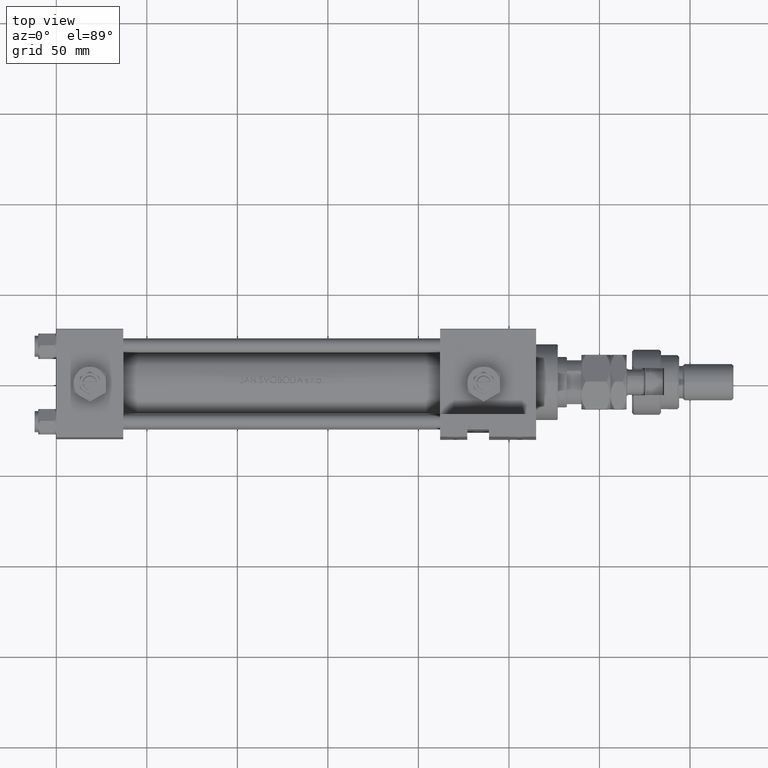
[diagram: clean part render]
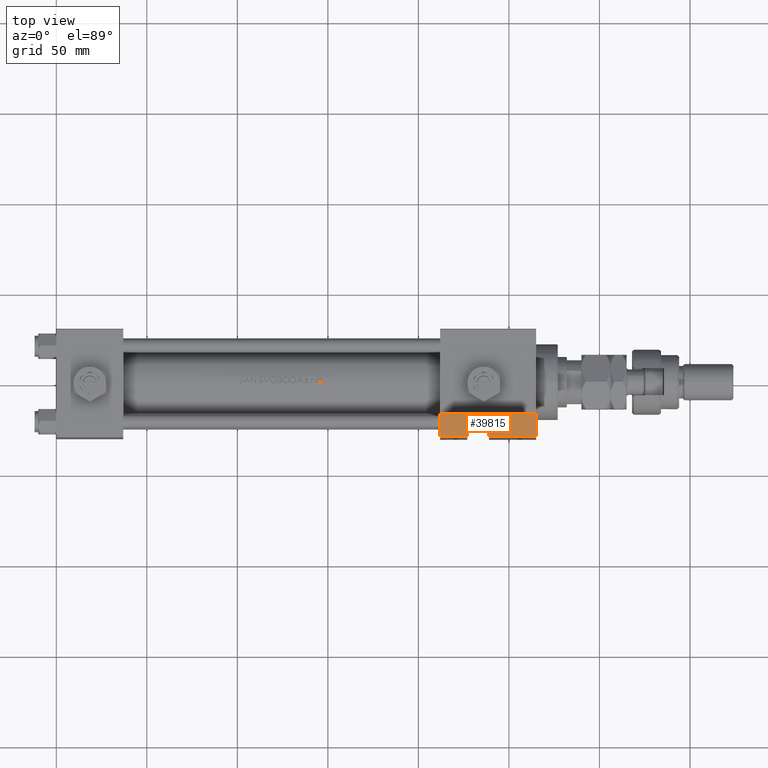
[diagram: same view with one face highlighted and labeled with its STEP entity id]
A machine part, top view. The second image highlights one B-rep face of the part: STEP entity #39815.
In plain terms, the highlighted planar face has unit normal (0, 0, 1).
Its self-contained STEP definition (entity closure, byte-faithful):
#839 = VERTEX_POINT ( 'NONE', #31587 ) ;
#1292 = FACE_OUTER_BOUND ( 'NONE', #13569, .T. ) ;
#2069 = CARTESIAN_POINT ( 'NONE',  ( 212.0000000000000000, -51.50000000000002132, -17.49999999999999645 ) ) ;
#4149 = LINE ( 'NONE', #12040, #42690 ) ;
#4414 = CARTESIAN_POINT ( 'NONE',  ( 265.0000000000000000, -51.50000000000001421, -29.99999999999999645 ) ) ;
#5605 = VECTOR ( 'NONE', #47328, 1000.000000000000000 ) ;
#5961 = DIRECTION ( 'NONE',  ( -1.000000000000000000, -1.309225264888155637E-16, -0.000000000000000000 ) ) ;
#7027 = EDGE_CURVE ( 'NONE', #52006, #31231, #25434, .T. ) ;
#7925 = EDGE_CURVE ( 'NONE', #839, #52006, #4149, .T. ) ;
#9406 = CARTESIAN_POINT ( 'NONE',  ( 212.0000000000000000, -51.50000000000002132, -29.99999999999999645 ) ) ;
#10712 = ORIENTED_EDGE ( 'NONE', *, *, #20881, .F. ) ;
#10920 = EDGE_CURVE ( 'NONE', #41830, #23632, #20719, .T. ) ;
#12040 = CARTESIAN_POINT ( 'NONE',  ( 227.0000000000000284, -51.50000000000000000, -25.99999999999999645 ) ) ;
#12905 = ORIENTED_EDGE ( 'NONE', *, *, #10920, .T. ) ;
#13569 = EDGE_LOOP ( 'NONE', ( #20718, #29948, #43441, #46271, #12905, #10712, #30673, #31751 ) ) ;
#13965 = VERTEX_POINT ( 'NONE', #37911 ) ;
#14051 = PLANE ( 'NONE',  #17198 ) ;
#14100 = LINE ( 'NONE', #17890, #37886 ) ;
#16356 = EDGE_CURVE ( 'NONE', #23657, #41830, #42982, .T. ) ;
#17198 = AXIS2_PLACEMENT_3D ( 'NONE', #18113, #31106, #51441 ) ;
#17890 = CARTESIAN_POINT ( 'NONE',  ( 212.0000000000000000, -51.50000000000002132, -29.99999999999999645 ) ) ;
#17990 = DIRECTION ( 'NONE',  ( 0.000000000000000000, 0.000000000000000000, -1.000000000000000000 ) ) ;
#18099 = VECTOR ( 'NONE', #21825, 1000.000000000000000 ) ;
#18113 = CARTESIAN_POINT ( 'NONE',  ( 212.0000000000000000, -51.50000000000002132, -17.49999999999999645 ) ) ;
#20718 = ORIENTED_EDGE ( 'NONE', *, *, #37917, .T. ) ;
#20719 = LINE ( 'NONE', #53261, #21088 ) ;
#20881 = EDGE_CURVE ( 'NONE', #31231, #23632, #45987, .T. ) ;
#21088 = VECTOR ( 'NONE', #49713, 1000.000000000000000 ) ;
#21825 = DIRECTION ( 'NONE',  ( -0.000000000000000000, -0.000000000000000000, -1.000000000000000000 ) ) ;
#22287 = VERTEX_POINT ( 'NONE', #4414 ) ;
#22733 = CARTESIAN_POINT ( 'NONE',  ( 212.0000000000000000, -51.50000000000002132, -17.49999999999999645 ) ) ;
#23632 = VERTEX_POINT ( 'NONE', #39283 ) ;
#23657 = VERTEX_POINT ( 'NONE', #39548 ) ;
#24913 = CARTESIAN_POINT ( 'NONE',  ( 227.0000000000000284, -51.50000000000000000, -25.99999999999999645 ) ) ;
#25434 = LINE ( 'NONE', #24913, #43634 ) ;
#29190 = DIRECTION ( 'NONE',  ( -1.000000000000000000, -1.309225264888155637E-16, -0.000000000000000000 ) ) ;
#29948 = ORIENTED_EDGE ( 'NONE', *, *, #31863, .F. ) ;
#30673 = ORIENTED_EDGE ( 'NONE', *, *, #7027, .F. ) ;
#31106 = DIRECTION ( 'NONE',  ( 1.309225264888156130E-16, -1.000000000000000000, 0.000000000000000000 ) ) ;
#31231 = VERTEX_POINT ( 'NONE', #48906 ) ;
#31587 = CARTESIAN_POINT ( 'NONE',  ( 239.0000000000000284, -51.50000000000001421, -25.99999999999999645 ) ) ;
#31751 = ORIENTED_EDGE ( 'NONE', *, *, #7925, .F. ) ;
#31863 = EDGE_CURVE ( 'NONE', #22287, #13965, #14100, .T. ) ;
#32593 = DIRECTION ( 'NONE',  ( -1.000000000000000000, -0.000000000000000000, -0.000000000000000000 ) ) ;
#37886 = VECTOR ( 'NONE', #5961, 1000.000000000000000 ) ;
#37911 = CARTESIAN_POINT ( 'NONE',  ( 239.0000000000000284, -51.50000000000000000, -29.99999999999999645 ) ) ;
#37917 = EDGE_CURVE ( 'NONE', #839, #13965, #38622, .T. ) ;
#38089 = CARTESIAN_POINT ( 'NONE',  ( 239.0000000000000284, -51.50000000000000000, -25.99999999999999645 ) ) ;
#38275 = VECTOR ( 'NONE', #29190, 1000.000000000000000 ) ;
#38619 = VECTOR ( 'NONE', #17990, 1000.000000000000000 ) ;
#38622 = LINE ( 'NONE', #38089, #18099 ) ;
#39283 = CARTESIAN_POINT ( 'NONE',  ( 212.0000000000000000, -51.50000000000002132, -29.99999999999999645 ) ) ;
#39543 = CARTESIAN_POINT ( 'NONE',  ( 227.0000000000000284, -51.50000000000000000, -25.99999999999999645 ) ) ;
#39548 = CARTESIAN_POINT ( 'NONE',  ( 265.0000000000000000, -51.50000000000001421, -17.49999999999999645 ) ) ;
#39815 = ADVANCED_FACE ( 'NONE', ( #1292 ), #14051, .T. ) ;
#41830 = VERTEX_POINT ( 'NONE', #22733 ) ;
#42690 = VECTOR ( 'NONE', #32593, 1000.000000000000000 ) ;
#42982 = LINE ( 'NONE', #2069, #5605 ) ;
#43441 = ORIENTED_EDGE ( 'NONE', *, *, #45015, .F. ) ;
#43634 = VECTOR ( 'NONE', #49821, 1000.000000000000000 ) ;
#45015 = EDGE_CURVE ( 'NONE', #23657, #22287, #51585, .T. ) ;
#45987 = LINE ( 'NONE', #9406, #38275 ) ;
#46271 = ORIENTED_EDGE ( 'NONE', *, *, #16356, .T. ) ;
#47328 = DIRECTION ( 'NONE',  ( -1.000000000000000000, -1.309225264888155637E-16, -0.000000000000000000 ) ) ;
#48906 = CARTESIAN_POINT ( 'NONE',  ( 227.0000000000000284, -51.50000000000000000, -29.99999999999999645 ) ) ;
#49713 = DIRECTION ( 'NONE',  ( 0.000000000000000000, 0.000000000000000000, -1.000000000000000000 ) ) ;
#49821 = DIRECTION ( 'NONE',  ( -0.000000000000000000, -0.000000000000000000, -1.000000000000000000 ) ) ;
#51441 = DIRECTION ( 'NONE',  ( 1.000000000000000000, 1.309225264888156130E-16, 0.000000000000000000 ) ) ;
#51585 = LINE ( 'NONE', #51865, #38619 ) ;
#51865 = CARTESIAN_POINT ( 'NONE',  ( 265.0000000000000000, -51.50000000000001421, -17.49999999999999645 ) ) ;
#52006 = VERTEX_POINT ( 'NONE', #39543 ) ;
#53261 = CARTESIAN_POINT ( 'NONE',  ( 212.0000000000000000, -51.50000000000002132, -17.49999999999999645 ) ) ;